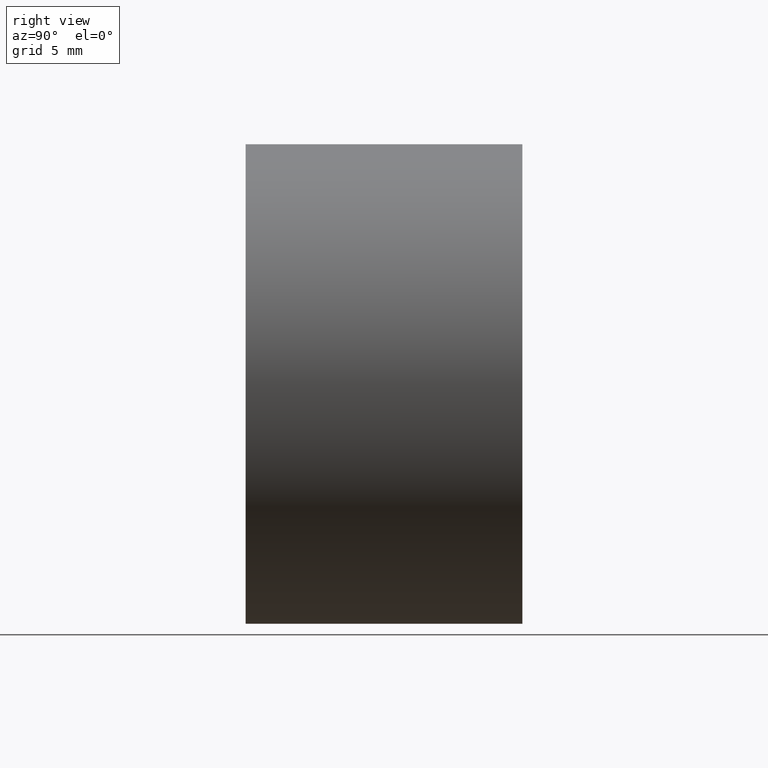
[diagram: clean part render]
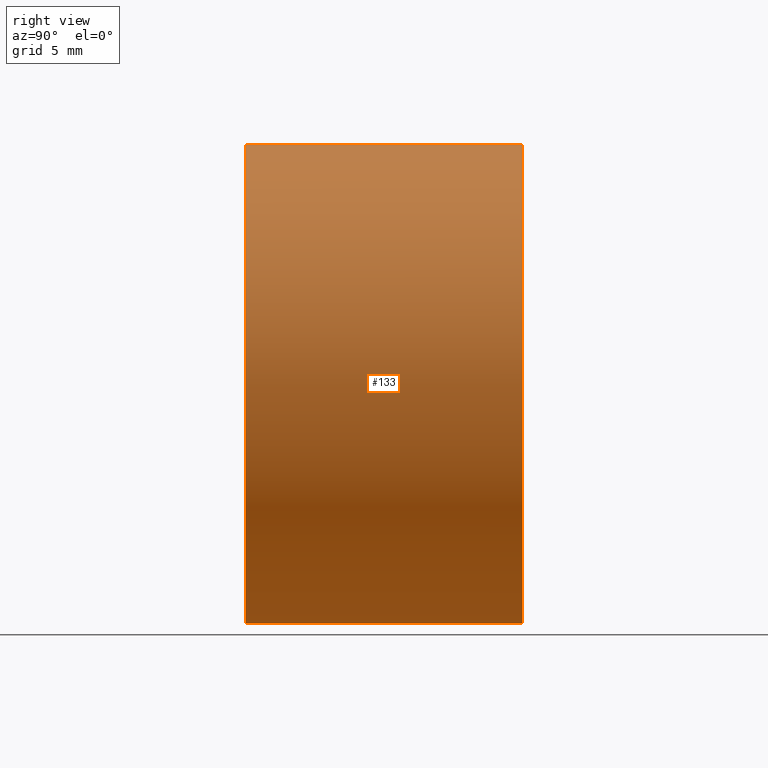
[diagram: same view with one face highlighted and labeled with its STEP entity id]
A machine part, right view. The second image highlights one B-rep face of the part: STEP entity #133.
In plain terms, the highlighted cylindrical surface (partial cylindrical patch) has radius 9.525 mm, axis along (-0, -1, -0).
Its self-contained STEP definition (entity closure, byte-faithful):
#6 = CARTESIAN_POINT ( 'NONE',  ( 1.166476076187854000E-015, 0.0000000000000000000, 9.525000000000000400 ) ) ;
#12 = ORIENTED_EDGE ( 'NONE', *, *, #231, .F. ) ;
#14 = CARTESIAN_POINT ( 'NONE',  ( 0.0000000000000000000, 11.00000000000000000, -9.525000000000000400 ) ) ;
#16 = DIRECTION ( 'NONE',  ( 0.0000000000000000000, 0.0000000000000000000, 1.000000000000000000 ) ) ;
#18 = ORIENTED_EDGE ( 'NONE', *, *, #126, .T. ) ;
#21 = DIRECTION ( 'NONE',  ( -0.0000000000000000000, -1.000000000000000000, -0.0000000000000000000 ) ) ;
#43 = EDGE_LOOP ( 'NONE', ( #46, #106, #18, #12 ) ) ;
#44 = DIRECTION ( 'NONE',  ( -0.0000000000000000000, -1.000000000000000000, -0.0000000000000000000 ) ) ;
#45 = EDGE_CURVE ( 'NONE', #132, #49, #120, .T. ) ;
#46 = ORIENTED_EDGE ( 'NONE', *, *, #59, .F. ) ;
#49 = VERTEX_POINT ( 'NONE', #6 ) ;
#50 = LINE ( 'NONE', #175, #53 ) ;
#53 = VECTOR ( 'NONE', #44, 1000.000000000000000 ) ;
#54 = CARTESIAN_POINT ( 'NONE',  ( 0.0000000000000000000, 11.00000000000000000, 0.0000000000000000000 ) ) ;
#59 = EDGE_CURVE ( 'NONE', #132, #244, #200, .T. ) ;
#86 = FACE_OUTER_BOUND ( 'NONE', #43, .T. ) ;
#102 = AXIS2_PLACEMENT_3D ( 'NONE', #54, #144, #155 ) ;
#105 = AXIS2_PLACEMENT_3D ( 'NONE', #221, #219, #16 ) ;
#106 = ORIENTED_EDGE ( 'NONE', *, *, #45, .T. ) ;
#109 = DIRECTION ( 'NONE',  ( 0.0000000000000000000, 0.0000000000000000000, -1.000000000000000000 ) ) ;
#120 = LINE ( 'NONE', #185, #150 ) ;
#126 = EDGE_CURVE ( 'NONE', #49, #149, #161, .T. ) ;
#132 = VERTEX_POINT ( 'NONE', #198 ) ;
#133 = ADVANCED_FACE ( 'NONE', ( #86 ), #183, .T. ) ;
#138 = CARTESIAN_POINT ( 'NONE',  ( 0.0000000000000000000, 11.00000000000000000, 0.0000000000000000000 ) ) ;
#144 = DIRECTION ( 'NONE',  ( 0.0000000000000000000, 1.000000000000000000, 0.0000000000000000000 ) ) ;
#149 = VERTEX_POINT ( 'NONE', #210 ) ;
#150 = VECTOR ( 'NONE', #21, 1000.000000000000000 ) ;
#155 = DIRECTION ( 'NONE',  ( 0.0000000000000000000, 0.0000000000000000000, 1.000000000000000000 ) ) ;
#161 = CIRCLE ( 'NONE', #105, 9.525000000000000400 ) ;
#175 = CARTESIAN_POINT ( 'NONE',  ( 0.0000000000000000000, 11.00000000000000000, -9.525000000000000400 ) ) ;
#183 = CYLINDRICAL_SURFACE ( 'NONE', #193, 9.525000000000000400 ) ;
#185 = CARTESIAN_POINT ( 'NONE',  ( 1.166476076187854000E-015, 11.00000000000000000, 9.525000000000000400 ) ) ;
#193 = AXIS2_PLACEMENT_3D ( 'NONE', #138, #208, #109 ) ;
#198 = CARTESIAN_POINT ( 'NONE',  ( 1.166476076187854000E-015, 11.00000000000000000, 9.525000000000000400 ) ) ;
#200 = CIRCLE ( 'NONE', #102, 9.525000000000000400 ) ;
#208 = DIRECTION ( 'NONE',  ( -0.0000000000000000000, -1.000000000000000000, -0.0000000000000000000 ) ) ;
#210 = CARTESIAN_POINT ( 'NONE',  ( 0.0000000000000000000, 0.0000000000000000000, -9.525000000000000400 ) ) ;
#219 = DIRECTION ( 'NONE',  ( 0.0000000000000000000, 1.000000000000000000, 0.0000000000000000000 ) ) ;
#221 = CARTESIAN_POINT ( 'NONE',  ( 0.0000000000000000000, 0.0000000000000000000, 0.0000000000000000000 ) ) ;
#231 = EDGE_CURVE ( 'NONE', #244, #149, #50, .T. ) ;
#244 = VERTEX_POINT ( 'NONE', #14 ) ;